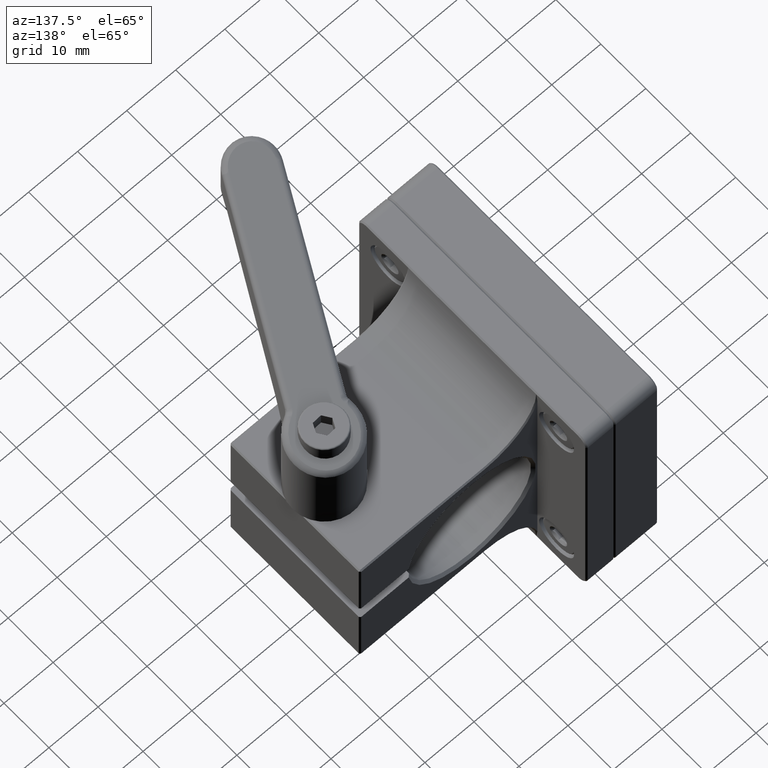
[diagram: clean part render]
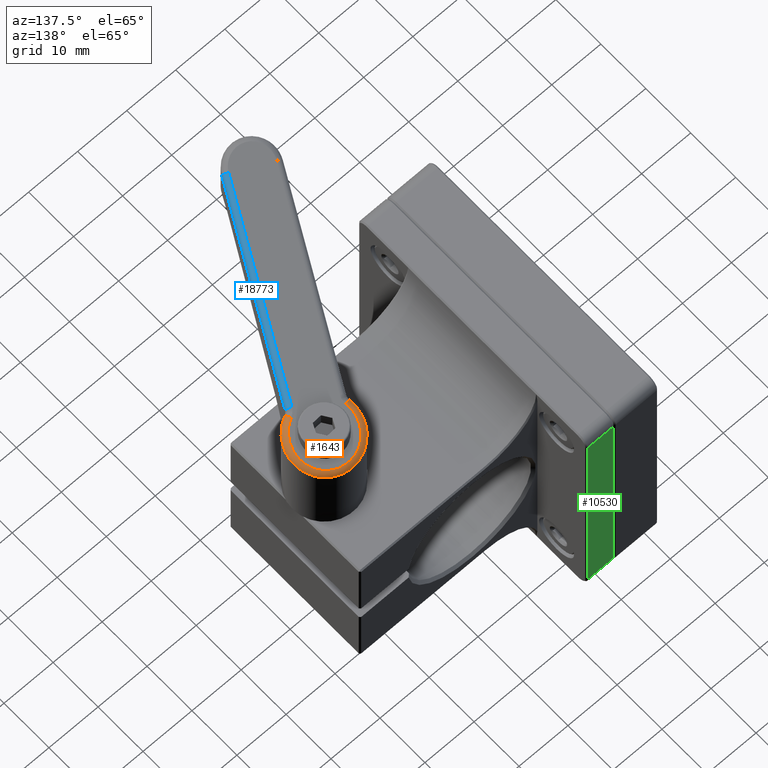
[diagram: same view with three faces highlighted in distinct colors, each labeled with its STEP entity id]
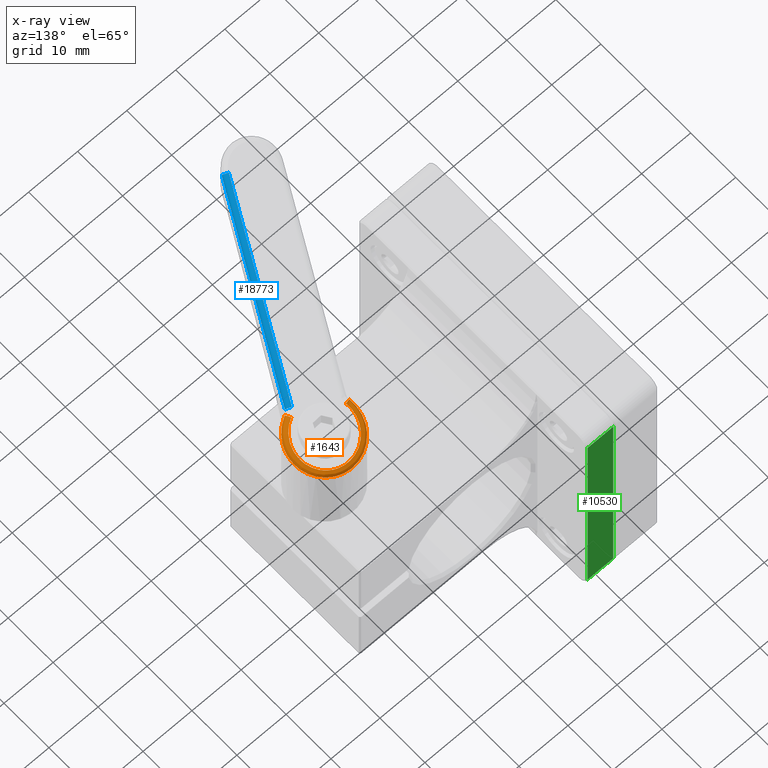
[diagram: x-ray of the same camera — body ghosted, the three highlighted faces saturated]
A machine part, auxiliary view with three faces highlighted in distinct colors.
The next image is the same camera in x-ray (body ghosted, the three faces saturated) — at least one of them is partly hidden behind the body in this view.
Their STEP definitions:

[orange] entity #1643 — the highlighted face is a freeform B-spline surface patch.
#133 = CARTESIAN_POINT ( 'NONE',  ( 3.426289811797734064, 4.252418032786885682, 25.20955969187994938 ) ) ;
#304 = CARTESIAN_POINT ( 'NONE',  ( 3.591092986197533143, 5.424389490949454107, 25.09271078797746313 ) ) ;
#615 = CARTESIAN_POINT ( 'NONE',  ( -1.907340578450393398, 6.223153031758121401, 24.70442013891782551 ) ) ;
#834 = CARTESIAN_POINT ( 'NONE',  ( -3.853486310669868686, -5.241237038218573119, 23.25224083823972876 ) ) ;
#937 = CARTESIAN_POINT ( 'NONE',  ( -5.803463714972034282, -2.939341992049740782, 22.77016190910642379 ) ) ;
#1046 = CARTESIAN_POINT ( 'NONE',  ( -0.6789294244536623335, -5.470823672006991600, 25.06461212203458899 ) ) ;
#1067 =( BOUNDED_CURVE ( )  B_SPLINE_CURVE ( 3, ( #7770, #17887, #20720, #4497 ),
 .UNSPECIFIED., .F., .F. ) 
 B_SPLINE_CURVE_WITH_KNOTS ( ( 4, 4 ),
 ( 1.570796326794896558, 4.712388980384689674 ),
 .UNSPECIFIED. ) 
 CURVE ( )  GEOMETRIC_REPRESENTATION_ITEM ( )  RATIONAL_B_SPLINE_CURVE ( ( 1.000000000000000000, 0.3333333333333333703, 0.3333333333333333703, 1.000000000000000000 ) ) 
 REPRESENTATION_ITEM ( '' )  );
#1138 = ORIENTED_EDGE ( 'NONE', *, *, #9320, .F. ) ;
#1153 = CARTESIAN_POINT ( 'NONE',  ( -4.299333465880518013, 3.738521501433726080, 24.00304531101919991 ) ) ;
#1182 = ORIENTED_EDGE ( 'NONE', *, *, #5342, .F. ) ;
#1259 = CARTESIAN_POINT ( 'NONE',  ( 3.064653722781582879, -5.738276744532909923, 24.96256298431310228 ) ) ;
#1630 = CARTESIAN_POINT ( 'NONE',  ( 3.426289811797733620, -4.252418032786884794, 25.20955969187994583 ) ) ;
#1643 = ADVANCED_FACE ( 'NONE', ( #18673 ), #10226, .T. ) ;
#2045 = CARTESIAN_POINT ( 'NONE',  ( -2.181319415304056708, 5.147007781562805917, 24.62408467447933447 ) ) ;
#2088 = CARTESIAN_POINT ( 'NONE',  ( 3.140416407842256064, 4.252418032786885682, 26.18451220195975182 ) ) ;
#2253 = CARTESIAN_POINT ( 'NONE',  ( -0.6789294244537761314, 5.470823672007114169, 25.06461212203455347 ) ) ;
#2353 = CARTESIAN_POINT ( 'NONE',  ( -0.4661827219864830840, 6.488651331915199272, 24.08965961195530525 ) ) ;
#2460 = CARTESIAN_POINT ( 'NONE',  ( -4.299333465880733840, -3.738521501433719862, 24.00304531101913597 ) ) ;
#2532 = CARTESIAN_POINT ( 'NONE',  ( 3.140416407842256064, 4.252418032786885682, 26.18451220195975182 ) ) ;
#2567 = CARTESIAN_POINT ( 'NONE',  ( -5.240487874432052884, 3.854580738088095426, 23.72708211113137011 ) ) ;
#2663 = CARTESIAN_POINT ( 'NONE',  ( -2.181319415304207254, -5.147007781562900064, 24.62408467447929183 ) ) ;
#2769 = CARTESIAN_POINT ( 'NONE',  ( -5.156334729040348286, -3.966375499031369323, 22.93014696732342372 ) ) ;
#2879 = CARTESIAN_POINT ( 'NONE',  ( -5.674470490926722732, -1.023438380910950629, 23.59983069472677286 ) ) ;
#2958 =( BOUNDED_CURVE ( )  B_SPLINE_CURVE ( 3, ( #2088, #8704, #13417, #5243, #15245, #7081, #18720 ),
 .UNSPECIFIED., .F., .T. ) 
 B_SPLINE_CURVE_WITH_KNOTS ( ( 4, 3, 4 ),
 ( 0.8925727990785845556, 3.141592653589793560, 5.390612508101002120 ),
 .UNSPECIFIED. ) 
 CURVE ( )  GEOMETRIC_REPRESENTATION_ITEM ( )  RATIONAL_B_SPLINE_CURVE ( ( 1.000000000000000000, 0.6210790945059170287, 0.6210790945059170287, 1.000000000000000000, 0.6210790945059172508, 0.6210790945059172508, 1.000000000000000000 ) ) 
 REPRESENTATION_ITEM ( '' )  );
#3660 = CARTESIAN_POINT ( 'NONE',  ( 2.813786143896022107, 5.873959965740981559, 26.08873840331364846 ) ) ;
#4075 = CARTESIAN_POINT ( 'NONE',  ( 0.8543207768730064489, -5.365105955659003278, 25.51418833178535550 ) ) ;
#4187 = CARTESIAN_POINT ( 'NONE',  ( -5.746873403955472526, -0.5117457232019575475, 23.57860087379721037 ) ) ;
#4292 = CARTESIAN_POINT ( 'NONE',  ( -5.156334729040335851, 3.966375499031385754, 22.93014696732342728 ) ) ;
#4392 = CARTESIAN_POINT ( 'NONE',  ( -5.674470490926514898, 1.023438380911015466, 23.59983069472682971 ) ) ;
#4480 =( BOUNDED_CURVE ( )  B_SPLINE_CURVE ( 3, ( #6448, #4705, #9617, #7976 ),
 .UNSPECIFIED., .F., .T. ) 
 B_SPLINE_CURVE_WITH_KNOTS ( ( 4, 4 ),
 ( 4.712388980384689674, 5.390612508101001232 ),
 .UNSPECIFIED. ) 
 CURVE ( )  GEOMETRIC_REPRESENTATION_ITEM ( )  RATIONAL_B_SPLINE_CURVE ( ( 1.000000000000000000, 0.9620336725853428916, 0.9620336725853428916, 1.000000000000000000 ) ) 
 REPRESENTATION_ITEM ( '' )  );
#4497 = CARTESIAN_POINT ( 'NONE',  ( 5.880303005785967335E-15, 6.477000000000000313, 24.20491062301768537 ) ) ;
#4502 = CARTESIAN_POINT ( 'NONE',  ( 1.067509789008698196, -6.424513920838923475, 25.57669913918897819 ) ) ;
#4705 = CARTESIAN_POINT ( 'NONE',  ( 1.493067126987086990, 6.477000000000002089, 24.57403090108566701 ) ) ;
#4888 = EDGE_CURVE ( 'NONE', #12547, #18793, #9668, .T. ) ;
#4990 = EDGE_LOOP ( 'NONE', ( #7044, #18556, #11321, #1138, #1182, #18068 ) ) ;
#5170 = VERTEX_POINT ( 'NONE', #15985 ) ;
#5243 = CARTESIAN_POINT ( 'NONE',  ( -5.746873403955472526, -1.248847353281387881E-15, 23.57860087379721037 ) ) ;
#5302 = CARTESIAN_POINT ( 'NONE',  ( -4.008885734417456881, 5.125645006113861868, 24.08820974806221926 ) ) ;
#5342 = EDGE_CURVE ( 'NONE', #5170, #20956, #21507, .T. ) ;
#5604 = CARTESIAN_POINT ( 'NONE',  ( 0.1465684765510069099, 6.503725095599383721, 24.24114569633947625 ) ) ;
#5714 = CARTESIAN_POINT ( 'NONE',  ( -0.7395966854995461581, -6.469006200059494560, 25.04682340284665187 ) ) ;
#5817 = CARTESIAN_POINT ( 'NONE',  ( -6.476999999999994095, 0.5860477581085100640, 23.36451477917031383 ) ) ;
#5920 = CARTESIAN_POINT ( 'NONE',  ( -3.522022382682981512, -5.471396899719176865, 24.23096673589773076 ) ) ;
#5935 = CARTESIAN_POINT ( 'NONE',  ( 4.063739079108933616, 5.043565573770491639, 25.20955969187994583 ) ) ;
#6032 = CARTESIAN_POINT ( 'NONE',  ( -6.082551306819159009, -2.303560195250959453, 23.48017414661608271 ) ) ;
#6130 = CARTESIAN_POINT ( 'NONE',  ( 1.352323330750068164, -6.363265203223637201, 24.53923582170558504 ) ) ;
#6215 = VERTEX_POINT ( 'NONE', #12376 ) ;
#6244 = CARTESIAN_POINT ( 'NONE',  ( 3.853236994065529331, -5.213172875730345268, 26.39352386692433328 ) ) ;
#6358 = CARTESIAN_POINT ( 'NONE',  ( 3.360124114771435355, -5.578350013359822945, 26.24893440653373844 ) ) ;
#6448 = CARTESIAN_POINT ( 'NONE',  ( 5.880303005785967335E-15, 6.477000000000000313, 24.20491062301768537 ) ) ;
#6695 = CARTESIAN_POINT ( 'NONE',  ( 3.943046296736832613E-15, -6.477000000000000313, 24.20491062301768537 ) ) ;
#6924 = CARTESIAN_POINT ( 'NONE',  ( 3.360124114771992687, 5.578350013359237636, 26.24893440653100640 ) ) ;
#7028 = CARTESIAN_POINT ( 'NONE',  ( 3.064653722781668144, 5.738276744532876172, 24.96256298431309872 ) ) ;
#7044 = ORIENTED_EDGE ( 'NONE', *, *, #4888, .T. ) ;
#7081 = CARTESIAN_POINT ( 'NONE',  ( -0.9770623388727022185, -7.569983561714312970, 24.97719425275892036 ) ) ;
#7348 = CARTESIAN_POINT ( 'NONE',  ( -3.343100755605219909, 5.580645103862687861, 23.37841979871748066 ) ) ;
#7453 = CARTESIAN_POINT ( 'NONE',  ( -6.476999999999995872, -0.6069542298441820138, 22.60364836371740793 ) ) ;
#7561 = CARTESIAN_POINT ( 'NONE',  ( -6.054341173530128017, 2.380099870100091053, 22.70813927422988954 ) ) ;
#7665 = CARTESIAN_POINT ( 'NONE',  ( -3.343100755605208807, -5.580645103862694079, 23.37841979871805975 ) ) ;
#7770 = CARTESIAN_POINT ( 'NONE',  ( 3.943046296736832613E-15, -6.477000000000000313, 24.20491062301768537 ) ) ;
#7774 = CARTESIAN_POINT ( 'NONE',  ( -5.746873403955472526, 0.5117457232019501090, 23.57860087379721037 ) ) ;
#7881 = CARTESIAN_POINT ( 'NONE',  ( 2.813786143895918634, -5.873959965740511713, 26.08873840331365201 ) ) ;
#7894 = CARTESIAN_POINT ( 'NONE',  ( 3.943046296736832613E-15, -6.477000000000000313, 24.20491062301768537 ) ) ;
#7976 = CARTESIAN_POINT ( 'NONE',  ( 4.063739079108933616, 5.043565573770491639, 25.20955969187994583 ) ) ;
#8000 = CARTESIAN_POINT ( 'NONE',  ( 1.493067126987086768, -6.477000000000002089, 24.57403090108566346 ) ) ;
#8160 = DIRECTION ( 'NONE',  ( -0.6274106961724466025, -0.7786885245901635777, 0.000000000000000000 ) ) ;
#8609 = EDGE_CURVE ( 'NONE', #12547, #5170, #2958, .T. ) ;
#8704 = CARTESIAN_POINT ( 'NONE',  ( -0.9770623388727058822, 7.569983561714314746, 24.97719425275892036 ) ) ;
#8870 = CARTESIAN_POINT ( 'NONE',  ( -1.663572607554445026, 6.289073748719926193, 23.79363749779204440 ) ) ;
#9092 = CARTESIAN_POINT ( 'NONE',  ( -0.4661827219864662641, -6.488651331915201048, 24.08965961195549710 ) ) ;
#9200 = CARTESIAN_POINT ( 'NONE',  ( -5.847109115702659565, -2.848558271537350972, 23.54920998160550027 ) ) ;
#9303 = CARTESIAN_POINT ( 'NONE',  ( -1.688493445619232647, -5.302552376371646226, 24.76859000787237264 ) ) ;
#9320 = EDGE_CURVE ( 'NONE', #20956, #11575, #18541, .T. ) ;
#9413 = CARTESIAN_POINT ( 'NONE',  ( -4.633371312754325899, -3.344198950163788098, 23.90509947740320129 ) ) ;
#9528 = CARTESIAN_POINT ( 'NONE',  ( -1.907340578451174773, -6.223153031759276921, 24.70442013891753064 ) ) ;
#9540 = CARTESIAN_POINT ( 'NONE',  ( 2.901104840881289615, -5.980331859345654699, 24.92212996715486995 ) ) ;
#9617 = CARTESIAN_POINT ( 'NONE',  ( 2.901104840881291391, 5.980331859345653811, 24.92212996715487350 ) ) ;
#9668 = CIRCLE ( 'NONE', #15558, 1.016000000000000680 ) ;
#9856 = CARTESIAN_POINT ( 'NONE',  ( 4.063739079108940722, -5.043565573770488975, 25.20955969187993873 ) ) ;
#10105 = DIRECTION ( 'NONE',  ( 0.7591516967164554375, 0.6116693382479845287, 0.2225967700120550785 ) ) ;
#10226 =( BOUNDED_SURFACE ( )  B_SPLINE_SURFACE ( 3, 2, ( 
 ( #18569, #20527, #12041 ),
 ( #304, #6924, #10628 ),
 ( #7028, #3660, #16951 ),
 ( #10414, #13891, #10519 ),
 ( #15308, #13780, #17257 ),
 ( #5604, #20409, #17158 ),
 ( #2353, #13679, #2253 ),
 ( #8870, #615, #13574 ),
 ( #20307, #15508, #2045 ),
 ( #7348, #13997, #20628 ),
 ( #20207, #5302, #11946 ),
 ( #17363, #16156, #1153 ),
 ( #4292, #2567, #12669 ),
 ( #12559, #21046, #12455 ),
 ( #7561, #10936, #10728 ),
 ( #10827, #19416, #4392 ),
 ( #11033, #5817, #7774 ),
 ( #7453, #19088, #4187 ),
 ( #17672, #15832, #2879 ),
 ( #20941, #6032, #19303 ),
 ( #937, #9200, #15940 ),
 ( #2769, #12782, #9413 ),
 ( #14213, #18982, #2460 ),
 ( #834, #16048, #20832 ),
 ( #7665, #5920, #19196 ),
 ( #14103, #17570, #2663 ),
 ( #14419, #9528, #9303 ),
 ( #9092, #5714, #1046 ),
 ( #20723, #17471, #14312 ),
 ( #6130, #4502, #4075 ),
 ( #15730, #11151, #17785 ),
 ( #1259, #7881, #14524 ),
 ( #12352, #6358, #13347 ),
 ( #9856, #6244, #12893 ) ),
 .UNSPECIFIED., .F., .F., .T. ) 
 B_SPLINE_SURFACE_WITH_KNOTS ( ( 4, 2, 2, 2, 2, 2, 2, 2, 2, 2, 2, 2, 2, 2, 2, 2, 4 ),
 ( 3, 3 ),
 ( 0.8925727990785843335, 1.173700280892485459, 1.454827762706386363, 1.735955244520287488, 2.017082726334188614, 2.298210208148089961, 2.579337689961990865, 2.860465171775891768, 3.141592653589793116, 3.422720135403694464, 3.703847617217595367, 3.984975099031496271, 4.266102580845397618, 4.547230062659298966, 4.828357544473199425, 5.109485026287100773, 5.390612508101002120 ),
 ( 0.000000000000000000, 1.000000000000000000 ),
 .UNSPECIFIED. ) 
 GEOMETRIC_REPRESENTATION_ITEM ( )  RATIONAL_B_SPLINE_SURFACE ( (
 ( 1.000000000000000000, 0.6416636720395726412, 1.000000000000000000),
 ( 1.000000000000000000, 0.6496630304843141746, 1.000000000000000000),
 ( 1.000000000000000000, 0.6584194309557953595, 1.000000000000000000),
 ( 1.000000000000000000, 0.6766325101615260351, 1.000000000000000000),
 ( 1.000000000000000000, 0.6860867710835441002, 1.000000000000000000),
 ( 1.000000000000000000, 0.7049149152407321317, 1.000000000000000000),
 ( 1.000000000000000000, 0.7142875365229703899, 1.000000000000000000),
 ( 1.000000000000000000, 0.7322670081120690178, 1.000000000000000000),
 ( 1.000000000000000000, 0.7408733658268982225, 1.000000000000000000),
 ( 1.000000000000000000, 0.7567548708512725764, 1.000000000000000000),
 ( 1.000000000000000000, 0.7640299134088953670, 1.000000000000000000),
 ( 1.000000000000000000, 0.7768109107986121975, 1.000000000000000000),
 ( 1.000000000000000000, 0.7823169115555461683, 1.000000000000000000),
 ( 1.000000000000000000, 0.7912495941653472364, 1.000000000000000000),
 ( 1.000000000000000000, 0.7946763498640513346, 1.000000000000000000),
 ( 1.000000000000000000, 0.7992657627137492726, 1.000000000000000000),
 ( 1.000000000000000000, 0.8004284666933388914, 1.000000000000000000),
 ( 1.000000000000000000, 0.8004284666933388914, 1.000000000000000000),
 ( 1.000000000000000000, 0.7992657627137208509, 1.000000000000000000),
 ( 1.000000000000000000, 0.7946763498640799783, 1.000000000000000000),
 ( 1.000000000000000000, 0.7912495941651183085, 1.000000000000000000),
 ( 1.000000000000000000, 0.7823169115557770947, 1.000000000000000000),
 ( 1.000000000000000000, 0.7768109107984386696, 1.000000000000000000),
 ( 1.000000000000000000, 0.7640299134090708932, 1.000000000000000000),
 ( 1.000000000000000000, 0.7567548708512631395, 1.000000000000000000),
 ( 1.000000000000000000, 0.7408733658269076594, 1.000000000000000000),
 ( 1.000000000000000000, 0.7322670081116968710, 1.000000000000000000),
 ( 1.000000000000000000, 0.7142875365233445351, 1.000000000000000000),
 ( 1.000000000000000000, 0.7049149152405963514, 1.000000000000000000),
 ( 1.000000000000000000, 0.6860867710836803246, 1.000000000000000000),
 ( 1.000000000000000000, 0.6766325101615259241, 1.000000000000000000),
 ( 1.000000000000000000, 0.6584194309557952485, 1.000000000000000000),
 ( 1.000000000000000000, 0.6496630304843138415, 1.000000000000000000),
 ( 1.000000000000000000, 0.6416636720395726412, 1.000000000000000000) ) ) 
 REPRESENTATION_ITEM ( '' )  SURFACE ( )  );
#10414 = CARTESIAN_POINT ( 'NONE',  ( 1.945201954131889011, 6.207746112321912868, 24.68580895185395718 ) ) ;
#10519 = CARTESIAN_POINT ( 'NONE',  ( 1.354198831881468168, 5.233982016271347071, 25.66076146193321961 ) ) ;
#10628 = CARTESIAN_POINT ( 'NONE',  ( 2.741912403777203355, 4.573503635979769832, 26.06766374528707786 ) ) ;
#10728 = CARTESIAN_POINT ( 'NONE',  ( -5.390514001245583664, 2.006750870868753811, 23.68309178430923012 ) ) ;
#10827 = CARTESIAN_POINT ( 'NONE',  ( -6.391126777570300455, 1.213845521545681594, 22.62487818464655831 ) ) ;
#10936 = CARTESIAN_POINT ( 'NONE',  ( -6.082551306819373949, 2.303560195250989651, 23.48017414661608981 ) ) ;
#11033 = CARTESIAN_POINT ( 'NONE',  ( -6.476999999999995872, 0.6069542298441733541, 22.60364836371740793 ) ) ;
#11151 = CARTESIAN_POINT ( 'NONE',  ( 1.666123746074692935, -6.295128889925114990, 25.75222339067095234 ) ) ;
#11321 = ORIENTED_EDGE ( 'NONE', *, *, #21291, .F. ) ;
#11575 = VERTEX_POINT ( 'NONE', #6695 ) ;
#11946 = CARTESIAN_POINT ( 'NONE',  ( -3.534891273736143980, 4.419082208693865255, 24.22719334831961291 ) ) ;
#12041 = CARTESIAN_POINT ( 'NONE',  ( 3.140416407842258284, 4.252418032786883018, 26.18451220195974116 ) ) ;
#12079 = EDGE_CURVE ( 'NONE', #6215, #18793, #4480, .T. ) ;
#12352 = CARTESIAN_POINT ( 'NONE',  ( 3.591092986197559345, -5.424389490949431014, 25.09271078797758392 ) ) ;
#12376 = CARTESIAN_POINT ( 'NONE',  ( 5.880303005785967335E-15, 6.477000000000000313, 24.20491062301768537 ) ) ;
#12455 = CARTESIAN_POINT ( 'NONE',  ( -5.178989869519999623, 2.478268738394809212, 23.74511441918625110 ) ) ;
#12547 = VERTEX_POINT ( 'NONE', #2532 ) ;
#12559 = CARTESIAN_POINT ( 'NONE',  ( -5.803463714972025400, 2.939341992049759433, 22.77016190910642734 ) ) ;
#12669 = CARTESIAN_POINT ( 'NONE',  ( -4.633371312754316129, 3.344198950163802309, 23.90509947740320484 ) ) ;
#12782 = CARTESIAN_POINT ( 'NONE',  ( -5.240487874431472015, -3.854580738087477698, 23.72708211113224408 ) ) ;
#12893 = CARTESIAN_POINT ( 'NONE',  ( 3.140416407842257396, -4.252418032786883018, 26.18451220195974116 ) ) ;
#13347 = CARTESIAN_POINT ( 'NONE',  ( 2.741912403777153173, -4.573503635979902171, 26.06766374528706365 ) ) ;
#13417 = CARTESIAN_POINT ( 'NONE',  ( -5.746873403955473414, 5.287709548412900418, 23.57860087379721392 ) ) ;
#13574 = CARTESIAN_POINT ( 'NONE',  ( -1.688493445619136502, 5.302552376371519216, 24.76859000787240106 ) ) ;
#13679 = CARTESIAN_POINT ( 'NONE',  ( -0.7395966854997607642, 6.469006200060807288, 25.04682340284652042 ) ) ;
#13780 = CARTESIAN_POINT ( 'NONE',  ( 1.067509789008744381, 6.424513920838735181, 25.57669913918878635 ) ) ;
#13891 = CARTESIAN_POINT ( 'NONE',  ( 1.666123746074568368, 6.295128889924665572, 25.75222339067094524 ) ) ;
#13997 = CARTESIAN_POINT ( 'NONE',  ( -3.522022382683030362, 5.471396899719406015, 24.23096673589720851 ) ) ;
#14103 = CARTESIAN_POINT ( 'NONE',  ( -2.248087129739259726, -6.104590624644331776, 23.64913216439944321 ) ) ;
#14204 = AXIS2_PLACEMENT_3D ( 'NONE', #1630, #10105, #16535 ) ;
#14213 = CARTESIAN_POINT ( 'NONE',  ( -4.760150306004359955, -4.434060385421116024, 23.02809280093947919 ) ) ;
#14312 = CARTESIAN_POINT ( 'NONE',  ( -0.1622960609811167354, -5.483532923740798815, 25.21609820641912592 ) ) ;
#14419 = CARTESIAN_POINT ( 'NONE',  ( -1.663572607554440363, -6.289073748719927970, 23.79363749779185966 ) ) ;
#14524 = CARTESIAN_POINT ( 'NONE',  ( 2.298050323095488956, -4.838154902253043232, 25.93751549439344828 ) ) ;
#14804 = DIRECTION ( 'NONE',  ( -0.7591516967164552154, 0.6116693382479848617, -0.2225967700120550230 ) ) ;
#15245 = CARTESIAN_POINT ( 'NONE',  ( -5.746873403955471638, -5.287709548412899530, 23.57860087379721037 ) ) ;
#15308 = CARTESIAN_POINT ( 'NONE',  ( 1.352323330750054842, 6.363265203223638089, 24.53923582170539319 ) ) ;
#15508 = CARTESIAN_POINT ( 'NONE',  ( -2.472891763562952150, 6.021169325716366316, 24.53859047980413166 ) ) ;
#15558 = AXIS2_PLACEMENT_3D ( 'NONE', #133, #14804, #8160 ) ;
#15730 = CARTESIAN_POINT ( 'NONE',  ( 1.945201954131998479, -6.207746112321869347, 24.68580895185396074 ) ) ;
#15832 = CARTESIAN_POINT ( 'NONE',  ( -6.396655911659332894, -1.173670978647596952, 23.38807309384111477 ) ) ;
#15940 = CARTESIAN_POINT ( 'NONE',  ( -5.178989869520009393, -2.478268738394795001, 23.74511441918625110 ) ) ;
#15985 = CARTESIAN_POINT ( 'NONE',  ( 3.140416407842255619, -4.252418032786884794, 26.18451220195974827 ) ) ;
#16048 = CARTESIAN_POINT ( 'NONE',  ( -4.008885734416874236, -5.125645006113302315, 24.08820974806219084 ) ) ;
#16156 = CARTESIAN_POINT ( 'NONE',  ( -4.866320910047413406, 4.317158610982711586, 23.83679451522313641 ) ) ;
#16535 = DIRECTION ( 'NONE',  ( -0.6274106961724463805, 0.7786885245901637997, 0.000000000000000000 ) ) ;
#16951 = CARTESIAN_POINT ( 'NONE',  ( 2.298050323095478298, 4.838154902253277712, 25.93751549439344473 ) ) ;
#17158 = CARTESIAN_POINT ( 'NONE',  ( -0.1622960609810542854, 5.483532923740723319, 25.21609820641914013 ) ) ;
#17257 = CARTESIAN_POINT ( 'NONE',  ( 0.8543207768729561558, 5.365105955659078774, 25.51418833178533774 ) ) ;
#17363 = CARTESIAN_POINT ( 'NONE',  ( -4.760150306004225840, 4.434060385421236816, 23.02809280093948274 ) ) ;
#17471 = CARTESIAN_POINT ( 'NONE',  ( -0.1354108716650247457, -6.509252547190919280, 25.22398142176160007 ) ) ;
#17570 = CARTESIAN_POINT ( 'NONE',  ( -2.472891763563024980, -6.021169325716592802, 24.53859047980358454 ) ) ;
#17672 = CARTESIAN_POINT ( 'NONE',  ( -6.391126777570334205, -1.213845521545559913, 22.62487818464655831 ) ) ;
#17785 = CARTESIAN_POINT ( 'NONE',  ( 1.354198831881477716, -5.233982016271573556, 25.66076146193322316 ) ) ;
#17887 = CARTESIAN_POINT ( 'NONE',  ( -12.95399999999999530, -6.477000000000002977, 21.00238610441713405 ) ) ;
#18068 = ORIENTED_EDGE ( 'NONE', *, *, #8609, .F. ) ;
#18541 =( BOUNDED_CURVE ( )  B_SPLINE_CURVE ( 3, ( #19540, #9540, #8000, #7894 ),
 .UNSPECIFIED., .F., .T. ) 
 B_SPLINE_CURVE_WITH_KNOTS ( ( 4, 4 ),
 ( 0.8925727990785853327, 1.570796326794896558 ),
 .UNSPECIFIED. ) 
 CURVE ( )  GEOMETRIC_REPRESENTATION_ITEM ( )  RATIONAL_B_SPLINE_CURVE ( ( 1.000000000000000000, 0.9620336725853430027, 0.9620336725853430027, 1.000000000000000000 ) ) 
 REPRESENTATION_ITEM ( '' )  );
#18556 = ORIENTED_EDGE ( 'NONE', *, *, #12079, .F. ) ;
#18569 = CARTESIAN_POINT ( 'NONE',  ( 4.063739079108942498, 5.043565573770488975, 25.20955969187993873 ) ) ;
#18673 = FACE_OUTER_BOUND ( 'NONE', #4990, .T. ) ;
#18720 = CARTESIAN_POINT ( 'NONE',  ( 3.140416407842255619, -4.252418032786884794, 26.18451220195974827 ) ) ;
#18793 = VERTEX_POINT ( 'NONE', #5935 ) ;
#18982 = CARTESIAN_POINT ( 'NONE',  ( -4.866320910048192339, -4.317158610983063305, 23.83679451522310799 ) ) ;
#19088 = CARTESIAN_POINT ( 'NONE',  ( -6.476999999999994095, -0.5860477581085186127, 23.36451477917031383 ) ) ;
#19196 = CARTESIAN_POINT ( 'NONE',  ( -3.104566197897181468, -4.705249793452827234, 24.35337230879781600 ) ) ;
#19303 = CARTESIAN_POINT ( 'NONE',  ( -5.390514001245381159, -2.006750870868799996, 23.68309178430928696 ) ) ;
#19416 = CARTESIAN_POINT ( 'NONE',  ( -6.396655911659103744, 1.173670978647627816, 23.38807309384111477 ) ) ;
#19540 = CARTESIAN_POINT ( 'NONE',  ( 4.063739079108932728, -5.043565573770491639, 25.20955969187994583 ) ) ;
#19694 = CARTESIAN_POINT ( 'NONE',  ( 4.063739079108932728, -5.043565573770491639, 25.20955969187994583 ) ) ;
#20207 = CARTESIAN_POINT ( 'NONE',  ( -3.853486310669986370, 5.241237038218465649, 23.25224083823972876 ) ) ;
#20307 = CARTESIAN_POINT ( 'NONE',  ( -2.248087129739239742, 6.104590624644340657, 23.64913216440002230 ) ) ;
#20409 = CARTESIAN_POINT ( 'NONE',  ( -0.1354108716648237953, 6.509252547191087146, 25.22398142176184876 ) ) ;
#20527 = CARTESIAN_POINT ( 'NONE',  ( 3.853236994065530663, 5.213172875730345268, 26.39352386692433683 ) ) ;
#20628 = CARTESIAN_POINT ( 'NONE',  ( -3.104566197897323576, 4.705249793452923157, 24.35337230879777337 ) ) ;
#20720 = CARTESIAN_POINT ( 'NONE',  ( -12.95399999999999530, 6.477000000000002977, 21.00238610441713405 ) ) ;
#20723 = CARTESIAN_POINT ( 'NONE',  ( 0.1465684765509794873, -6.503725095599384609, 24.24114569633929150 ) ) ;
#20832 = CARTESIAN_POINT ( 'NONE',  ( -3.534891273735941475, -4.419082208693859037, 24.22719334831967331 ) ) ;
#20941 = CARTESIAN_POINT ( 'NONE',  ( -6.054341173530100484, -2.380099870100191861, 22.70813927422988954 ) ) ;
#20956 = VERTEX_POINT ( 'NONE', #19694 ) ;
#21046 = CARTESIAN_POINT ( 'NONE',  ( -5.847109115701892179, 2.848558271537068087, 23.54920998160642398 ) ) ;
#21291 = EDGE_CURVE ( 'NONE', #11575, #6215, #1067, .T. ) ;
#21507 = CIRCLE ( 'NONE', #14204, 1.016000000000000458 ) ;

[blue] entity #18773 — the highlighted cylindrical surface (edge-blend (fillet) strip) has radius 1.016 mm, axis along (0.4344, 0.8557, -0.2814).
#107 = AXIS2_PLACEMENT_3D ( 'NONE', #11517, #8136, #16306 ) ;
#1218 = VERTEX_POINT ( 'NONE', #14578 ) ;
#3114 = CARTESIAN_POINT ( 'NONE',  ( -5.733960551926900351, 3.746499999999999275, 22.52361147851719991 ) ) ;
#3243 = DIRECTION ( 'NONE',  ( 0.9595989272439006124, -8.474849542002728442E-17, 0.2813714605861000750 ) ) ;
#3283 = EDGE_CURVE ( 'NONE', #1218, #17758, #8973, .T. ) ;
#3561 = EDGE_CURVE ( 'NONE', #3814, #1218, #19883, .T. ) ;
#3679 = CARTESIAN_POINT ( 'NONE',  ( 4.860550663247940051, 3.746499999999998387, 26.68888613788919528 ) ) ;
#3814 = VERTEX_POINT ( 'NONE', #21328 ) ;
#5946 = CARTESIAN_POINT ( 'NONE',  ( 40.19550051622558584, 3.746499999999995278, 35.99094577597811906 ) ) ;
#7720 = CARTESIAN_POINT ( 'NONE',  ( 39.90962700911862271, 3.746499999999995278, 36.96589825581207833 ) ) ;
#7878 = VECTOR ( 'NONE', #3243, 1000.000000000000114 ) ;
#7892 = VERTEX_POINT ( 'NONE', #20741 ) ;
#8101 = VECTOR ( 'NONE', #20219, 1000.000000000000114 ) ;
#8136 = DIRECTION ( 'NONE',  ( -0.9595989272439003903, -1.836911654771278657E-15, -0.2813714605861006857 ) ) ;
#8973 = CIRCLE ( 'NONE', #10022, 1.016000000000002235 ) ;
#9121 = DIRECTION ( 'NONE',  ( -0.2813715621131485656, 0.000000000000000000, 0.9595988974743595579 ) ) ;
#9427 = FACE_OUTER_BOUND ( 'NONE', #15295, .T. ) ;
#10022 = AXIS2_PLACEMENT_3D ( 'NONE', #5946, #12590, #9121 ) ;
#11517 = CARTESIAN_POINT ( 'NONE',  ( 4.860550663247942715, 3.746499999999998387, 25.63011046489205214 ) ) ;
#11624 = CARTESIAN_POINT ( 'NONE',  ( 40.48137340395548023, 4.762499999999995737, 36.07476878752894578 ) ) ;
#11954 = ORIENTED_EDGE ( 'NONE', *, *, #3561, .F. ) ;
#12166 = LINE ( 'NONE', #3679, #8101 ) ;
#12292 = EDGE_CURVE ( 'NONE', #7892, #3814, #20946, .T. ) ;
#12590 = DIRECTION ( 'NONE',  ( 0.9595988974743603350, -8.474849279088329749E-17, 0.2813715621131466782 ) ) ;
#12685 = DIRECTION ( 'NONE',  ( 0.2813714605860999640, 0.000000000000000000, -0.9595989272439003903 ) ) ;
#13019 = DIRECTION ( 'NONE',  ( -0.9595989272439005013, 8.474849542002725977E-17, -0.2813714605861000750 ) ) ;
#14578 = CARTESIAN_POINT ( 'NONE',  ( 40.19550052509419658, 4.762499999999995737, 35.99094577597811906 ) ) ;
#15208 = ORIENTED_EDGE ( 'NONE', *, *, #12292, .F. ) ;
#15295 = EDGE_LOOP ( 'NONE', ( #16337, #11954, #15208, #20406 ) ) ;
#16064 = AXIS2_PLACEMENT_3D ( 'NONE', #3114, #13019, #12685 ) ;
#16069 = CYLINDRICAL_SURFACE ( 'NONE', #16064, 1.015999999999999570 ) ;
#16306 = DIRECTION ( 'NONE',  ( 0.2813714605861007412, 0.000000000000000000, -0.9595989272439002793 ) ) ;
#16337 = ORIENTED_EDGE ( 'NONE', *, *, #3283, .F. ) ;
#17758 = VERTEX_POINT ( 'NONE', #7720 ) ;
#18773 = ADVANCED_FACE ( 'NONE', ( #9427 ), #16069, .T. ) ;
#19856 = EDGE_CURVE ( 'NONE', #17758, #7892, #12166, .T. ) ;
#19883 = LINE ( 'NONE', #11624, #7878 ) ;
#20219 = DIRECTION ( 'NONE',  ( -0.9595989272439006124, 8.474849542002728442E-17, -0.2813714605861000750 ) ) ;
#20406 = ORIENTED_EDGE ( 'NONE', *, *, #19856, .F. ) ;
#20741 = CARTESIAN_POINT ( 'NONE',  ( 4.574677259292464271, 3.746499999999998387, 26.60506297497185457 ) ) ;
#20946 = CIRCLE ( 'NONE', #107, 1.015999999999999792 ) ;
#21328 = CARTESIAN_POINT ( 'NONE',  ( 4.860550663247940939, 4.762499999999999289, 25.63011046489204503 ) ) ;

[green] entity #10530 — the highlighted planar face has unit normal (0, -1, 0).
#70 = VERTEX_POINT ( 'NONE', #1482 ) ;
#597 = FACE_OUTER_BOUND ( 'NONE', #19317, .T. ) ;
#911 = VERTEX_POINT ( 'NONE', #20964 ) ;
#1180 = EDGE_CURVE ( 'NONE', #3108, #70, #15387, .T. ) ;
#1324 = VECTOR ( 'NONE', #11236, 1000.000000000000000 ) ;
#1482 = CARTESIAN_POINT ( 'NONE',  ( 2.607499999999999485, 25.39999999999999858, -23.39999999999999503 ) ) ;
#1656 = VERTEX_POINT ( 'NONE', #8093 ) ;
#1805 = CARTESIAN_POINT ( 'NONE',  ( 2.607499999999999485, 25.39999999999999858, -23.39999999999999503 ) ) ;
#2321 = AXIS2_PLACEMENT_3D ( 'NONE', #16726, #18549, #16929 ) ;
#3020 = LINE ( 'NONE', #4542, #13312 ) ;
#3108 = VERTEX_POINT ( 'NONE', #11559 ) ;
#4542 = CARTESIAN_POINT ( 'NONE',  ( 2.857499999999999929, 25.39999999999999858, -23.39999999999999503 ) ) ;
#4586 = CARTESIAN_POINT ( 'NONE',  ( 2.857499999999999929, 25.39999999999999858, 23.40000000000000568 ) ) ;
#7464 = ORIENTED_EDGE ( 'NONE', *, *, #16330, .T. ) ;
#8093 = CARTESIAN_POINT ( 'NONE',  ( -2.607499999999999485, 25.39999999999999858, 23.40000000000000568 ) ) ;
#10076 = PLANE ( 'NONE',  #2321 ) ;
#10530 = ADVANCED_FACE ( 'NONE', ( #597 ), #10076, .F. ) ;
#11236 = DIRECTION ( 'NONE',  ( 1.000000000000000000, -0.000000000000000000, -0.000000000000000000 ) ) ;
#11559 = CARTESIAN_POINT ( 'NONE',  ( 2.607499999999999485, 25.39999999999999858, 23.40000000000000568 ) ) ;
#12322 = EDGE_CURVE ( 'NONE', #70, #911, #3020, .T. ) ;
#12489 = VECTOR ( 'NONE', #16638, 1000.000000000000000 ) ;
#13076 = LINE ( 'NONE', #21455, #12489 ) ;
#13312 = VECTOR ( 'NONE', #21197, 1000.000000000000000 ) ;
#15070 = DIRECTION ( 'NONE',  ( 0.000000000000000000, 0.000000000000000000, -1.000000000000000000 ) ) ;
#15387 = LINE ( 'NONE', #1805, #18447 ) ;
#16330 = EDGE_CURVE ( 'NONE', #911, #1656, #13076, .T. ) ;
#16638 = DIRECTION ( 'NONE',  ( 0.000000000000000000, 0.000000000000000000, 1.000000000000000000 ) ) ;
#16726 = CARTESIAN_POINT ( 'NONE',  ( 2.857499999999999929, 25.39999999999999858, 25.40000000000000213 ) ) ;
#16906 = ORIENTED_EDGE ( 'NONE', *, *, #17441, .T. ) ;
#16929 = DIRECTION ( 'NONE',  ( 0.000000000000000000, -0.000000000000000000, -1.000000000000000000 ) ) ;
#17441 = EDGE_CURVE ( 'NONE', #1656, #3108, #19499, .T. ) ;
#18004 = ORIENTED_EDGE ( 'NONE', *, *, #12322, .T. ) ;
#18447 = VECTOR ( 'NONE', #15070, 1000.000000000000000 ) ;
#18549 = DIRECTION ( 'NONE',  ( 0.000000000000000000, -1.000000000000000000, 0.000000000000000000 ) ) ;
#19317 = EDGE_LOOP ( 'NONE', ( #16906, #19572, #18004, #7464 ) ) ;
#19499 = LINE ( 'NONE', #4586, #1324 ) ;
#19572 = ORIENTED_EDGE ( 'NONE', *, *, #1180, .T. ) ;
#20964 = CARTESIAN_POINT ( 'NONE',  ( -2.607499999999999485, 25.39999999999999858, -23.39999999999999503 ) ) ;
#21197 = DIRECTION ( 'NONE',  ( -1.000000000000000000, 0.000000000000000000, 0.000000000000000000 ) ) ;
#21455 = CARTESIAN_POINT ( 'NONE',  ( -2.607499999999999485, 25.39999999999999858, 25.40000000000000213 ) ) ;